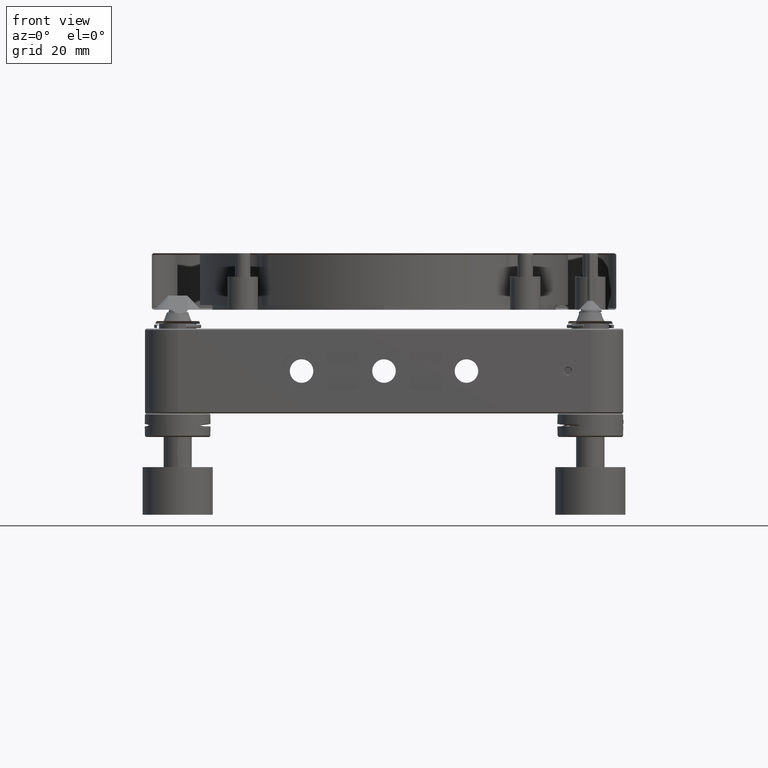
[diagram: clean part render]
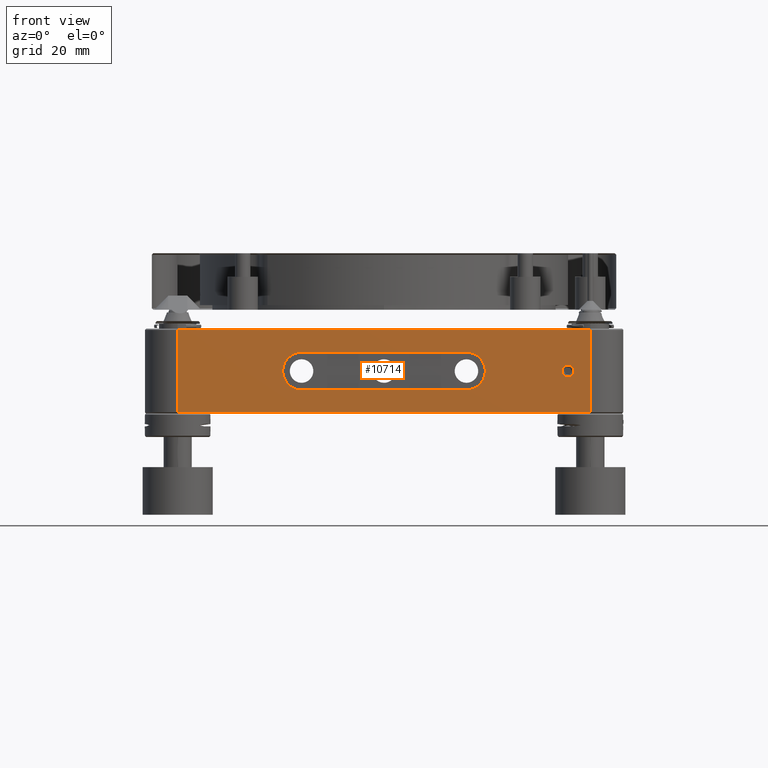
[diagram: same view with one face highlighted and labeled with its STEP entity id]
A machine part, front view. The second image highlights one B-rep face of the part: STEP entity #10714.
In plain terms, the highlighted planar face has unit normal (0, 1, 0).
Its self-contained STEP definition (entity closure, byte-faithful):
#194 = B_SPLINE_CURVE_WITH_KNOTS ( 'NONE', 3,
 ( #11155, #2759, #11071, #12223, #1523, #2850, #8242, #4095, #13805, #9479, #16393, #1694, #7080, #6911, #14882, #9824, #12314, #4273 ),
 .UNSPECIFIED., .F., .F.,
 ( 4, 2, 2, 2, 2, 2, 2, 2, 4 ),
 ( 0.000000000000000000, 0.1250000000000000278, 0.2500000000000000555, 0.3750000000000001110, 0.5000000000000000000, 0.6250000000000000000, 0.7500000000000000000, 0.8750000000000001110, 1.000000000000000000 ),
 .UNSPECIFIED. ) ;
#254 = CARTESIAN_POINT ( 'NONE',  ( 19.51447592148360144, -50.79999999999999716, -3.495145553417025486 ) ) ;
#415 = CARTESIAN_POINT ( 'NONE',  ( 20.99514555341703925, -50.80000000000000426, 2.014475921483601439 ) ) ;
#760 = CARTESIAN_POINT ( 'NONE',  ( 39.77439212801318291, -50.79999999999999716, 1.025289990227233661 ) ) ;
#912 = B_SPLINE_CURVE_WITH_KNOTS ( 'NONE', 3,
 ( #14291, #14377, #13143, #15896, #4743, #4913, #7480, #15624, #7566, #10493, #10311, #17229, #12881, #9163, #2262, #2442, #2175, #7837, #5004, #1033, #7658, #14557, #6071, #2353, #10402, #6424, #760, #6154, #9070, #15714, #13055, #14466, #937, #11820 ),
 .UNSPECIFIED., .F., .F.,
 ( 4, 1, 1, 2, 2, 2, 1, 1, 2, 2, 2, 1, 1, 2, 2, 2, 1, 1, 2, 2, 4 ),
 ( -1.000000000000000000, -0.9375000000000338618, -0.9062500000000479616, -0.8906250000000524025, -0.8750000000000568434, -0.7500000000000597300, -0.6875000000000595080, -0.6562500000000579536, -0.6406250000000559552, -0.6250000000000539568, -0.5000000000000462963, -0.4375000000000425215, -0.4062500000000400791, -0.3906250000000388578, -0.3750000000000376366, -0.2500000000000278666, -0.1875000000000246470, -0.1562500000000252021, -0.1406250000000233147, -0.1250000000000213163, -0.000000000000000000 ),
 .UNSPECIFIED. ) ;
#937 = CARTESIAN_POINT ( 'NONE',  ( 39.20913117626099620, -50.79999999999999005, 1.249999999999990452 ) ) ;
#1033 = CARTESIAN_POINT ( 'NONE',  ( 40.25707606986490816, -50.79999999999999716, 0.3293503164329171229 ) ) ;
#1096 = CARTESIAN_POINT ( 'NONE',  ( 38.28795941067846798, -50.80000000000001137, 1.005621433375085028 ) ) ;
#1235 = EDGE_LOOP ( 'NONE', ( #9422, #14034, #11551, #3357 ) ) ;
#1356 = CARTESIAN_POINT ( 'NONE',  ( 37.92189737487385059, -50.80000000000000426, 0.5389796670256458144 ) ) ;
#1410 = EDGE_CURVE ( 'NONE', #13102, #3823, #15806, .T. ) ;
#1446 = CARTESIAN_POINT ( 'NONE',  ( 38.04437856662345752, -50.79999999999999716, -0.7620405893220235649 ) ) ;
#1523 = CARTESIAN_POINT ( 'NONE',  ( -19.95818687989966733, -50.79999999999999716, 3.198667369592715470 ) ) ;
#1694 = CARTESIAN_POINT ( 'NONE',  ( -20.99514555341703215, -50.80000000000000426, -2.014475921483602328 ) ) ;
#1751 = CARTESIAN_POINT ( 'NONE',  ( 17.50000000000000355, -50.79999999999999716, -3.999999999999995559 ) ) ;
#2175 = CARTESIAN_POINT ( 'NONE',  ( 40.29993269810136525, -50.79999999999999716, -0.1586042252507947614 ) ) ;
#2259 = EDGE_CURVE ( 'NONE', #12177, #12841, #15537, .T. ) ;
#2262 = CARTESIAN_POINT ( 'NONE',  ( 40.20493010742274009, -50.80000000000001137, -0.4785488709746843483 ) ) ;
#2280 = CARTESIAN_POINT ( 'NONE',  ( 43.80000000000001137, -50.79999999999369464, 8.749999999962396302 ) ) ;
#2353 = CARTESIAN_POINT ( 'NONE',  ( 40.14890197946508721, -50.79999999999999005, 0.6202885519847768370 ) ) ;
#2442 = CARTESIAN_POINT ( 'NONE',  ( 40.27067752757046293, -50.80000000000001137, -0.3126745147735767172 ) ) ;
#2506 = CARTESIAN_POINT ( 'NONE',  ( 37.87357851992529589, -50.80000000000000426, -0.4230013043508560888 ) ) ;
#2583 = CARTESIAN_POINT ( 'NONE',  ( -43.80000000000001847, -50.80000000001412275, 8.749999999983934629 ) ) ;
#2759 = CARTESIAN_POINT ( 'NONE',  ( -18.02359877559830537, -50.80000000000001137, 3.999999999999994671 ) ) ;
#2850 = CARTESIAN_POINT ( 'NONE',  ( -20.69866736959273013, -50.80000000000001847, 2.458186879899655342 ) ) ;
#2860 = VECTOR ( 'NONE', #9545, 1000.000000000000000 ) ;
#3101 = CARTESIAN_POINT ( 'NONE',  ( -17.50000000000000000, -50.79999999999999716, -4.000000000000003553 ) ) ;
#3160 = CARTESIAN_POINT ( 'NONE',  ( 18.02359877559830181, -50.80000000000001137, 4.000000000000006217 ) ) ;
#3357 = ORIENTED_EDGE ( 'NONE', *, *, #2259, .F. ) ;
#3441 = ORIENTED_EDGE ( 'NONE', *, *, #12020, .F. ) ;
#3632 = PLANE ( 'NONE',  #10095 ) ;
#3823 = VERTEX_POINT ( 'NONE', #2280 ) ;
#3926 = CARTESIAN_POINT ( 'NONE',  ( 37.95109802053509895, -50.80000000000001137, -0.6202885519855099172 ) ) ;
#4014 = CARTESIAN_POINT ( 'NONE',  ( 38.02471000976981230, -50.79999999999999005, 0.7243921280114036243 ) ) ;
#4095 = CARTESIAN_POINT ( 'NONE',  ( -21.39589070667326709, -50.80000000000001137, 1.046991537437117703 ) ) ;
#4103 = CARTESIAN_POINT ( 'NONE',  ( 37.86076689320009336, -50.79999999999999005, -0.3856389984871306797 ) ) ;
#4164 = LINE ( 'NONE', #5882, #2860 ) ;
#4218 = VERTEX_POINT ( 'NONE', #10838 ) ;
#4273 = CARTESIAN_POINT ( 'NONE',  ( -17.50000000000000000, -50.79999999999999716, -4.000000000000003553 ) ) ;
#4309 = LINE ( 'NONE', #5286, #15268 ) ;
#4372 = EDGE_CURVE ( 'NONE', #7594, #17160, #194, .T. ) ;
#4410 = CARTESIAN_POINT ( 'NONE',  ( 21.39589070667325998, -50.79999999999999716, -1.046991537437116371 ) ) ;
#4564 = EDGE_CURVE ( 'NONE', #12841, #7594, #16911, .T. ) ;
#4743 = CARTESIAN_POINT ( 'NONE',  ( 39.43571080435895482, -50.80000000000000426, -1.189204713810559255 ) ) ;
#4913 = CARTESIAN_POINT ( 'NONE',  ( 39.47304119650188170, -50.80000000000000426, -1.176405706191731682 ) ) ;
#4952 = FACE_BOUND ( 'NONE', #16525, .T. ) ;
#5004 = CARTESIAN_POINT ( 'NONE',  ( 40.28908831120230616, -50.79999999999998295, 0.1962934954634885931 ) ) ;
#5077 = VERTEX_POINT ( 'NONE', #6084 ) ;
#5159 = CARTESIAN_POINT ( 'NONE',  ( 38.54999354161406444, -50.80000000000000426, -1.145850069177310138 ) ) ;
#5286 = CARTESIAN_POINT ( 'NONE',  ( -50.79999999999999005, -50.79999999999999716, -4.000000000000003553 ) ) ;
#5340 = CARTESIAN_POINT ( 'NONE',  ( 38.32560787198988805, -50.80000000000000426, -1.025289990229792503 ) ) ;
#5603 = VECTOR ( 'NONE', #16813, 1000.000000000000000 ) ;
#5816 = CARTESIAN_POINT ( 'NONE',  ( 20.69866736959273013, -50.79999999999999005, 2.458186879899661559 ) ) ;
#5882 = CARTESIAN_POINT ( 'NONE',  ( -50.79999999999999005, -50.79999999999999716, -8.749999999990915711 ) ) ;
#6071 = CARTESIAN_POINT ( 'NONE',  ( 40.22015205093589429, -50.79999999999999716, 0.4400971163232841321 ) ) ;
#6084 = CARTESIAN_POINT ( 'NONE',  ( -43.79999999999999005, -50.79999999999999716, -8.749999999993189448 ) ) ;
#6154 = CARTESIAN_POINT ( 'NONE',  ( 39.64652461719139609, -50.80000000000000426, 1.100119322146477341 ) ) ;
#6424 = CARTESIAN_POINT ( 'NONE',  ( 39.87301449803822351, -50.79999999999999005, 0.9448049200622925525 ) ) ;
#6667 = CARTESIAN_POINT ( 'NONE',  ( 37.84292393013374323, -50.79999999999999716, -0.3293503164292991836 ) ) ;
#6755 = CARTESIAN_POINT ( 'NONE',  ( 37.80006730190071806, -50.79999999999999716, 0.1586042252452842527 ) ) ;
#6757 = DIRECTION ( 'NONE',  ( 1.000000000000000000, 0.000000000000000000, 0.000000000000000000 ) ) ;
#6839 = CARTESIAN_POINT ( 'NONE',  ( 39.05000000000002558, -50.79999999999999716, -1.249999999999990674 ) ) ;
#6911 = CARTESIAN_POINT ( 'NONE',  ( -19.95818687989966378, -50.80000000000000426, -3.198667369592724352 ) ) ;
#6973 = CARTESIAN_POINT ( 'NONE',  ( 18.02359877559829471, -50.80000000000000426, -3.999999999999993339 ) ) ;
#7053 = CARTESIAN_POINT ( 'NONE',  ( 19.95818687989965667, -50.80000000000000426, -3.198667369592714138 ) ) ;
#7080 = CARTESIAN_POINT ( 'NONE',  ( -20.69866736959272302, -50.79999999999999716, -2.458186879899663335 ) ) ;
#7097 = ORIENTED_EDGE ( 'NONE', *, *, #14267, .F. ) ;
#7136 = CARTESIAN_POINT ( 'NONE',  ( 21.39589070667326709, -50.79999999999999716, 1.046991537437124586 ) ) ;
#7437 = B_SPLINE_CURVE_WITH_KNOTS ( 'NONE', 3,
 ( #9143, #14536, #7816, #7988, #13298, #10650, #11974, #13564, #1096, #8076, #4014, #12062, #1356, #15967, #14624, #16053, #6755, #11885, #10819, #6667, #4103, #2506, #9489, #3926, #1446, #17472, #5340, #17294, #10735, #5159, #14894, #7903, #8166, #6839 ),
 .UNSPECIFIED., .F., .F.,
 ( 4, 1, 1, 2, 2, 2, 1, 1, 2, 2, 2, 1, 1, 2, 2, 2, 1, 1, 2, 2, 4 ),
 ( -1.000000000000000000, -0.9375000000000233147, -0.9062500000000323075, -0.8906250000000341949, -0.8750000000000359712, -0.7500000000000321965, -0.6875000000000321965, -0.6562500000000321965, -0.6406250000000309752, -0.6250000000000297540, -0.5000000000000224265, -0.4375000000000187628, -0.4062500000000164313, -0.3906250000000152101, -0.3750000000000140998, -0.2500000000000028866, -0.1874999999999991118, -0.1562499999999993339, -0.1406249999999993339, -0.1249999999999994449, -0.000000000000000000 ),
 .UNSPECIFIED. ) ;
#7480 = CARTESIAN_POINT ( 'NONE',  ( 39.49009711632292152, -50.80000000000000426, -1.170152050936005939 ) ) ;
#7566 = CARTESIAN_POINT ( 'NONE',  ( 39.81204058931977130, -50.80000000000001137, -1.005621433380479379 ) ) ;
#7594 = VERTEX_POINT ( 'NONE', #11916 ) ;
#7635 = EDGE_LOOP ( 'NONE', ( #8445, #16729, #3441, #8832 ) ) ;
#7658 = CARTESIAN_POINT ( 'NONE',  ( 40.23923310679904120, -50.80000000000000426, 0.3856389984894549317 ) ) ;
#7693 = CARTESIAN_POINT ( 'NONE',  ( -50.79999999999999005, -50.79999999999999716, 4.000000000000005329 ) ) ;
#7816 = CARTESIAN_POINT ( 'NONE',  ( 38.85355757384305520, -50.80000000000000426, 1.239029422040994532 ) ) ;
#7837 = CARTESIAN_POINT ( 'NONE',  ( 40.30003365094930956, -50.79999999999999005, 0.07930211262539740846 ) ) ;
#7871 = DIRECTION ( 'NONE',  ( -1.000000000000000000, -0.000000000000000000, 0.000000000000000000 ) ) ;
#7903 = CARTESIAN_POINT ( 'NONE',  ( 38.73749602809186143, -50.79999999999999716, -1.220745125442670664 ) ) ;
#7988 = CARTESIAN_POINT ( 'NONE',  ( 38.72053798554698290, -50.79999999999998295, 1.207031902993924488 ) ) ;
#8076 = CARTESIAN_POINT ( 'NONE',  ( 38.10519507993603128, -50.80000000000000426, 0.8230144980372241514 ) ) ;
#8166 = CARTESIAN_POINT ( 'NONE',  ( 38.89086882374263610, -50.79999999999998295, -1.249999999999990452 ) ) ;
#8242 = CARTESIAN_POINT ( 'NONE',  ( -20.99514555341703925, -50.80000000000001137, 2.014475921483596110 ) ) ;
#8445 = ORIENTED_EDGE ( 'NONE', *, *, #10177, .F. ) ;
#8469 = CARTESIAN_POINT ( 'NONE',  ( 21.50000000000000000, -50.80000000000000426, 0.5235987755983025904 ) ) ;
#8645 = CARTESIAN_POINT ( 'NONE',  ( 39.05000000000002558, -50.79999999999999716, 1.249999999999990674 ) ) ;
#8832 = ORIENTED_EDGE ( 'NONE', *, *, #1410, .F. ) ;
#9070 = CARTESIAN_POINT ( 'NONE',  ( 39.58897966702650706, -50.80000000000000426, 1.128102625124750347 ) ) ;
#9143 = CARTESIAN_POINT ( 'NONE',  ( 39.05000000000002558, -50.79999999999999716, 1.249999999999990674 ) ) ;
#9163 = CARTESIAN_POINT ( 'NONE',  ( 40.19585006917784398, -50.80000000000001137, -0.5000064583850341027 ) ) ;
#9422 = ORIENTED_EDGE ( 'NONE', *, *, #16334, .F. ) ;
#9479 = CARTESIAN_POINT ( 'NONE',  ( -21.50000000000000000, -50.80000000000000426, -0.5235987755983025904 ) ) ;
#9489 = CARTESIAN_POINT ( 'NONE',  ( 37.87984794906410002, -50.79999999999999716, -0.4400971163231906513 ) ) ;
#9545 = DIRECTION ( 'NONE',  ( -1.000000000000000000, -0.000000000000000000, 0.000000000000000000 ) ) ;
#9579 = CARTESIAN_POINT ( 'NONE',  ( 0.000000000000000000, -50.80000000000929816, 8.749999999990706101 ) ) ;
#9713 = CARTESIAN_POINT ( 'NONE',  ( 20.69866736959273013, -50.80000000000001847, -2.458186879899654009 ) ) ;
#9824 = CARTESIAN_POINT ( 'NONE',  ( -18.54699153743712614, -50.80000000000000426, -3.895890706673267090 ) ) ;
#9884 = CARTESIAN_POINT ( 'NONE',  ( 19.51447592148360499, -50.80000000000001137, 3.495145553417036144 ) ) ;
#10003 = FACE_BOUND ( 'NONE', #1235, .T. ) ;
#10095 = AXIS2_PLACEMENT_3D ( 'NONE', #16829, #15752, #13180 ) ;
#10177 = EDGE_CURVE ( 'NONE', #5077, #13102, #17125, .T. ) ;
#10311 = CARTESIAN_POINT ( 'NONE',  ( 40.07528999023178784, -50.80000000000001137, -0.7243921280066828450 ) ) ;
#10402 = CARTESIAN_POINT ( 'NONE',  ( 40.05562143337307646, -50.79999999999999716, 0.7620405893249474483 ) ) ;
#10493 = CARTESIAN_POINT ( 'NONE',  ( 39.99480492006487964, -50.80000000000000426, -0.8230144980345273087 ) ) ;
#10650 = CARTESIAN_POINT ( 'NONE',  ( 38.62695880349784971, -50.79999999999999716, 1.176405706191731459 ) ) ;
#10714 = ADVANCED_FACE ( 'NONE', ( #10003, #4952, #14506 ), #3632, .F. ) ;
#10735 = CARTESIAN_POINT ( 'NONE',  ( 38.51102033297497940, -50.80000000000001847, -1.128102625125985137 ) ) ;
#10819 = CARTESIAN_POINT ( 'NONE',  ( 37.81091168879591891, -50.80000000000000426, -0.1962934954586668390 ) ) ;
#10838 = CARTESIAN_POINT ( 'NONE',  ( 43.80000000000000426, -50.80000000000133298, -8.749999999992244426 ) ) ;
#10944 = DIRECTION ( 'NONE',  ( 1.000000000000000000, 0.000000000000000000, -0.000000000000000000 ) ) ;
#11071 = CARTESIAN_POINT ( 'NONE',  ( -18.54699153743712259, -50.80000000000000426, 3.895890706673256876 ) ) ;
#11155 = CARTESIAN_POINT ( 'NONE',  ( -17.50000000000000000, -50.79999999999999716, 3.999999999999997335 ) ) ;
#11551 = ORIENTED_EDGE ( 'NONE', *, *, #4564, .F. ) ;
#11820 = CARTESIAN_POINT ( 'NONE',  ( 39.05000000000002558, -50.79999999999999716, 1.249999999999990674 ) ) ;
#11885 = CARTESIAN_POINT ( 'NONE',  ( 37.79996634904966868, -50.79999999999999005, -0.07930211262264193206 ) ) ;
#11916 = CARTESIAN_POINT ( 'NONE',  ( -17.50000000000000000, -50.79999999999999716, 3.999999999999997335 ) ) ;
#11973 = VECTOR ( 'NONE', #6757, 1000.000000000000000 ) ;
#11974 = CARTESIAN_POINT ( 'NONE',  ( 38.60990288367649725, -50.79999999999999716, 1.170152050935830079 ) ) ;
#12020 = EDGE_CURVE ( 'NONE', #3823, #4218, #13876, .T. ) ;
#12062 = CARTESIAN_POINT ( 'NONE',  ( 37.94988067785130426, -50.79999999999999716, 0.5965246171900545624 ) ) ;
#12177 = VERTEX_POINT ( 'NONE', #16521 ) ;
#12223 = CARTESIAN_POINT ( 'NONE',  ( -19.51447592148360144, -50.80000000000000426, 3.495145553417026374 ) ) ;
#12314 = CARTESIAN_POINT ( 'NONE',  ( -18.02359877559830537, -50.80000000000000426, -4.000000000000004441 ) ) ;
#12371 = CARTESIAN_POINT ( 'NONE',  ( 18.54699153743711904, -50.79999999999999716, -3.895890706673255544 ) ) ;
#12454 = CARTESIAN_POINT ( 'NONE',  ( 20.99514555341703570, -50.80000000000000426, -2.014475921483593002 ) ) ;
#12841 = VERTEX_POINT ( 'NONE', #17290 ) ;
#12863 = ORIENTED_EDGE ( 'NONE', *, *, #13884, .F. ) ;
#12881 = CARTESIAN_POINT ( 'NONE',  ( 40.17810262512693953, -50.80000000000000426, -0.5389796670233705234 ) ) ;
#13055 = CARTESIAN_POINT ( 'NONE',  ( 39.52857018883243967, -50.79999999999999716, 1.154921657688698922 ) ) ;
#13102 = VERTEX_POINT ( 'NONE', #2583 ) ;
#13143 = CARTESIAN_POINT ( 'NONE',  ( 39.24644242615580225, -50.79999999999998295, -1.239029422040995199 ) ) ;
#13180 = DIRECTION ( 'NONE',  ( 0.000000000000000000, -0.000000000000000000, 1.000000000000000000 ) ) ;
#13298 = CARTESIAN_POINT ( 'NONE',  ( 38.66428919564051370, -50.80000000000001137, 1.189204713810559699 ) ) ;
#13564 = CARTESIAN_POINT ( 'NONE',  ( 38.42971144801715866, -50.80000000000001137, 1.098901979465620737 ) ) ;
#13805 = CARTESIAN_POINT ( 'NONE',  ( -21.50000000000000000, -50.80000000000000426, 0.5235987755982950409 ) ) ;
#13876 = LINE ( 'NONE', #15385, #5603 ) ;
#13884 = EDGE_CURVE ( 'NONE', #16665, #16098, #912, .T. ) ;
#13948 = CARTESIAN_POINT ( 'NONE',  ( 17.50000000000000711, -50.79999999999999716, 4.000000000000005329 ) ) ;
#14034 = ORIENTED_EDGE ( 'NONE', *, *, #4372, .F. ) ;
#14267 = EDGE_CURVE ( 'NONE', #16098, #16665, #7437, .T. ) ;
#14291 = CARTESIAN_POINT ( 'NONE',  ( 39.05000000000002558, -50.79999999999999716, -1.249999999999990674 ) ) ;
#14377 = CARTESIAN_POINT ( 'NONE',  ( 39.12938721587815394, -50.80000000000001137, -1.249999999999990896 ) ) ;
#14466 = CARTESIAN_POINT ( 'NONE',  ( 39.36250397191177086, -50.79999999999999716, 1.220745125442670442 ) ) ;
#14506 = FACE_OUTER_BOUND ( 'NONE', #7635, .T. ) ;
#14536 = CARTESIAN_POINT ( 'NONE',  ( 38.97061278412122221, -50.80000000000001137, 1.249999999999990896 ) ) ;
#14557 = CARTESIAN_POINT ( 'NONE',  ( 40.22642148007419394, -50.79999999999999005, 0.4230013043521467231 ) ) ;
#14624 = CARTESIAN_POINT ( 'NONE',  ( 37.89506989257701974, -50.79999999999999716, 0.4785488709741246294 ) ) ;
#14874 = CARTESIAN_POINT ( 'NONE',  ( 39.05000000000002558, -50.79999999999999716, -1.249999999999990674 ) ) ;
#14882 = CARTESIAN_POINT ( 'NONE',  ( -19.51447592148360499, -50.79999999999999716, -3.495145553417033923 ) ) ;
#14894 = CARTESIAN_POINT ( 'NONE',  ( 38.57142981116715674, -50.79999999999999005, -1.154921657688700476 ) ) ;
#15193 = CARTESIAN_POINT ( 'NONE',  ( 21.50000000000000000, -50.79999999999999005, -0.5235987755982943748 ) ) ;
#15268 = VECTOR ( 'NONE', #10944, 1000.000000000000000 ) ;
#15282 = CARTESIAN_POINT ( 'NONE',  ( 18.54699153743713325, -50.80000000000000426, 3.895890706673267534 ) ) ;
#15385 = CARTESIAN_POINT ( 'NONE',  ( 43.80000000000001137, -50.79999999999999716, 9.000000000000003553 ) ) ;
#15537 = B_SPLINE_CURVE_WITH_KNOTS ( 'NONE', 3,
 ( #1751, #6973, #12371, #254, #7053, #9713, #12454, #4410, #15193, #8469, #7136, #415, #5816, #16620, #9884, #15282, #3160, #13948 ),
 .UNSPECIFIED., .F., .F.,
 ( 4, 2, 2, 2, 2, 2, 2, 2, 4 ),
 ( 0.000000000000000000, 0.1250000000000000555, 0.2500000000000001110, 0.3750000000000001665, 0.5000000000000001110, 0.6250000000000001110, 0.7500000000000001110, 0.8750000000000000000, 1.000000000000000000 ),
 .UNSPECIFIED. ) ;
#15624 = CARTESIAN_POINT ( 'NONE',  ( 39.67028855198789472, -50.79999999999999716, -1.098901979464214973 ) ) ;
#15701 = CARTESIAN_POINT ( 'NONE',  ( -43.79999999999999005, -50.79999999999999716, 9.000000000000003553 ) ) ;
#15714 = CARTESIAN_POINT ( 'NONE',  ( 39.55000645838678963, -50.80000000000000426, 1.145850069176622688 ) ) ;
#15752 = DIRECTION ( 'NONE',  ( 0.000000000000000000, 1.000000000000000000, 0.000000000000000000 ) ) ;
#15806 = LINE ( 'NONE', #9579, #11973 ) ;
#15896 = CARTESIAN_POINT ( 'NONE',  ( 39.37946201445214456, -50.79999999999999005, -1.207031902993926487 ) ) ;
#15967 = CARTESIAN_POINT ( 'NONE',  ( 37.90414993082261219, -50.80000000000000426, 0.5000064583862976475 ) ) ;
#16053 = CARTESIAN_POINT ( 'NONE',  ( 37.82932247243164881, -50.80000000000000426, 0.3126745147780370937 ) ) ;
#16098 = VERTEX_POINT ( 'NONE', #8645 ) ;
#16314 = VECTOR ( 'NONE', #17213, 1000.000000000000000 ) ;
#16334 = EDGE_CURVE ( 'NONE', #17160, #12177, #4309, .T. ) ;
#16393 = CARTESIAN_POINT ( 'NONE',  ( -21.39589070667326354, -50.79999999999999716, -1.046991537437126141 ) ) ;
#16521 = CARTESIAN_POINT ( 'NONE',  ( 17.50000000000000355, -50.79999999999999716, -3.999999999999995559 ) ) ;
#16525 = EDGE_LOOP ( 'NONE', ( #12863, #7097 ) ) ;
#16620 = CARTESIAN_POINT ( 'NONE',  ( 19.95818687989966378, -50.80000000000001137, 3.198667369592724352 ) ) ;
#16665 = VERTEX_POINT ( 'NONE', #14874 ) ;
#16729 = ORIENTED_EDGE ( 'NONE', *, *, #17424, .F. ) ;
#16813 = DIRECTION ( 'NONE',  ( 0.000000000000000000, 0.000000000000000000, -1.000000000000000000 ) ) ;
#16829 = CARTESIAN_POINT ( 'NONE',  ( -50.79999999999999005, -50.79999999999999716, 9.000000000000003553 ) ) ;
#16911 = LINE ( 'NONE', #7693, #17084 ) ;
#17084 = VECTOR ( 'NONE', #7871, 1000.000000000000000 ) ;
#17125 = LINE ( 'NONE', #15701, #16314 ) ;
#17160 = VERTEX_POINT ( 'NONE', #3101 ) ;
#17213 = DIRECTION ( 'NONE',  ( 0.000000000000000000, -0.000000000000000000, 1.000000000000000000 ) ) ;
#17229 = CARTESIAN_POINT ( 'NONE',  ( 40.15011932214986956, -50.80000000000001137, -0.5965246171865172808 ) ) ;
#17290 = CARTESIAN_POINT ( 'NONE',  ( 17.50000000000000711, -50.79999999999999716, 4.000000000000005329 ) ) ;
#17294 = CARTESIAN_POINT ( 'NONE',  ( 38.45347538281091460, -50.80000000000000426, -1.100119322148396028 ) ) ;
#17424 = EDGE_CURVE ( 'NONE', #4218, #5077, #4164, .T. ) ;
#17472 = CARTESIAN_POINT ( 'NONE',  ( 38.22698550196351874, -50.79999999999999005, -0.9448049200637548273 ) ) ;